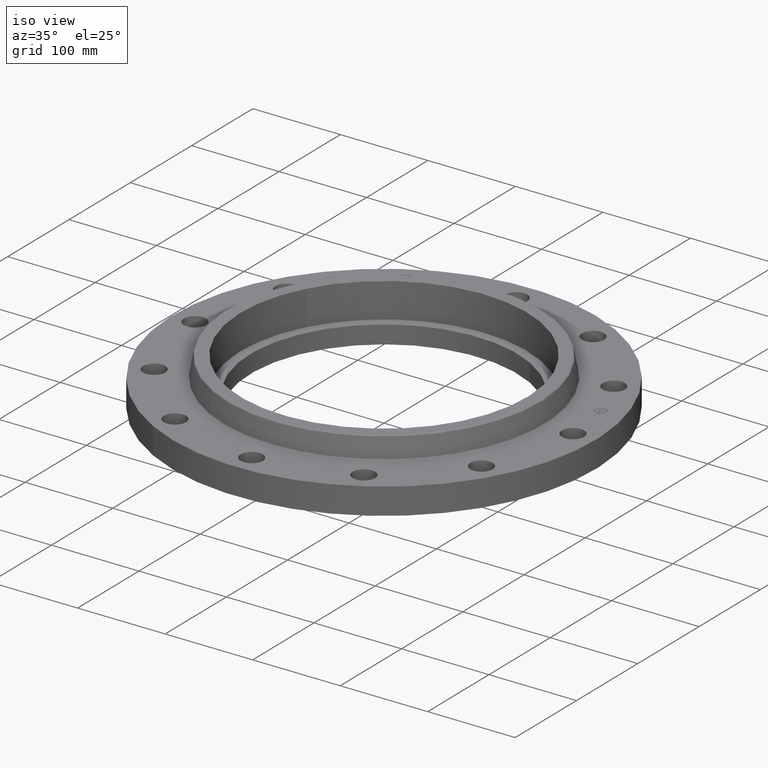
[diagram: clean part render]
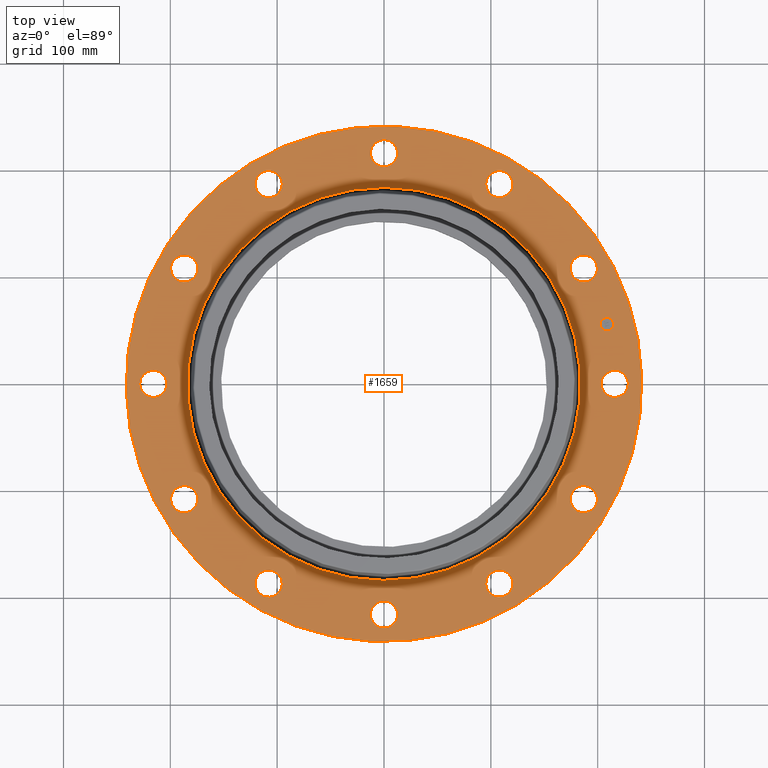
[diagram: tour spotlight — one face highlighted and labeled with its STEP entity id]
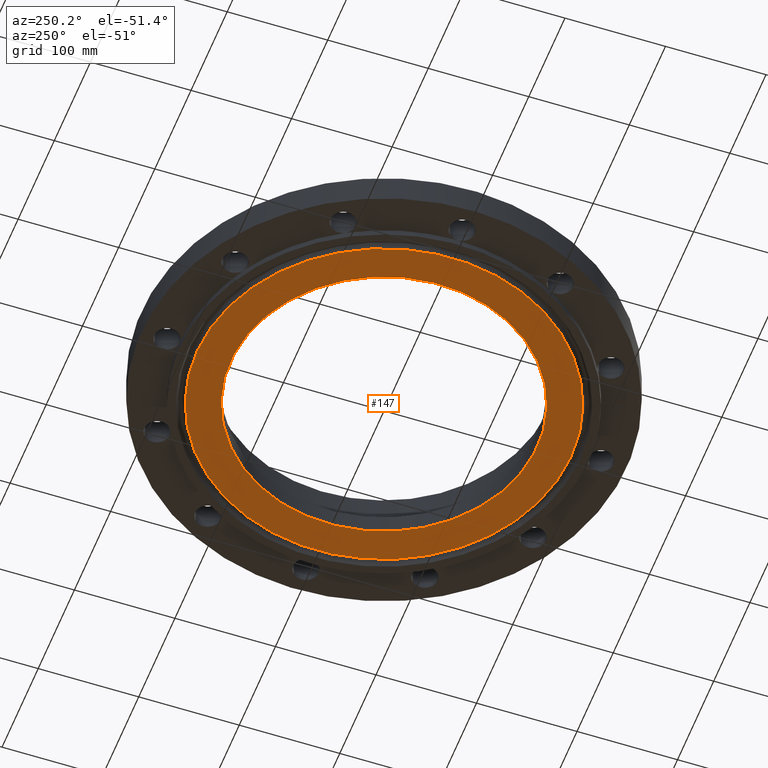
[diagram: tour spotlight — one face highlighted and labeled with its STEP entity id]
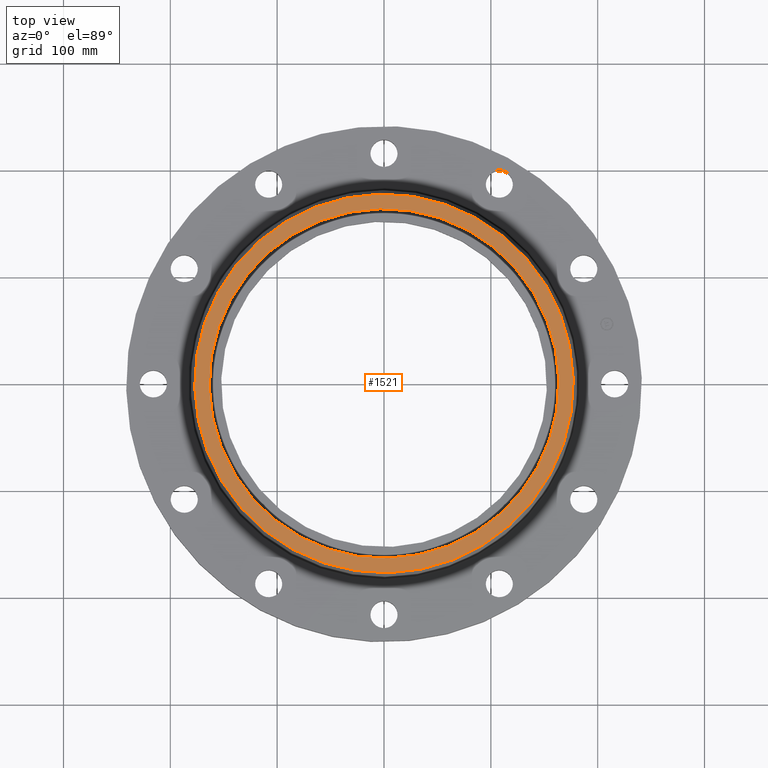
[diagram: tour spotlight — one face highlighted and labeled with its STEP entity id]
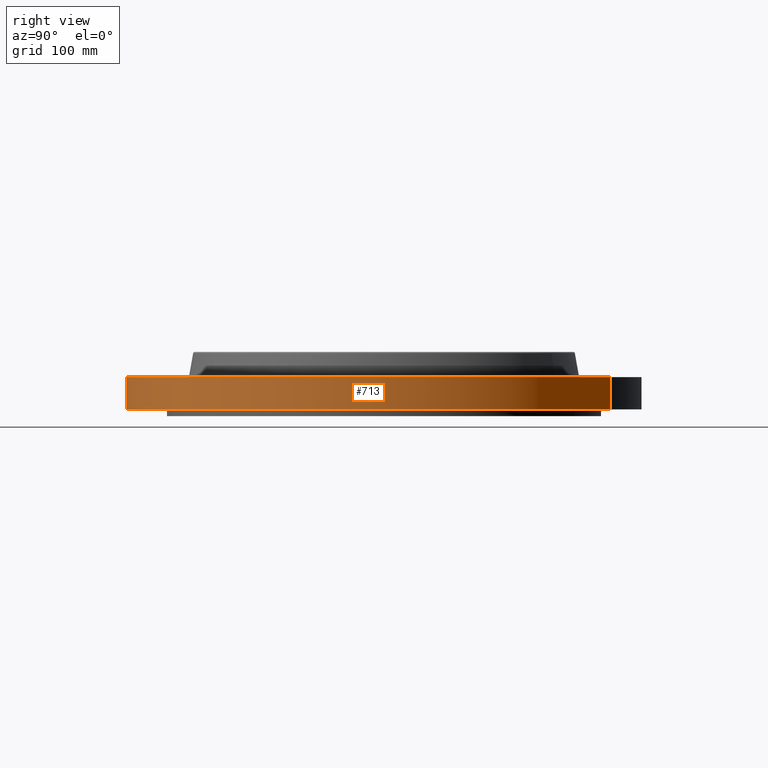
[diagram: tour spotlight — one face highlighted and labeled with its STEP entity id]
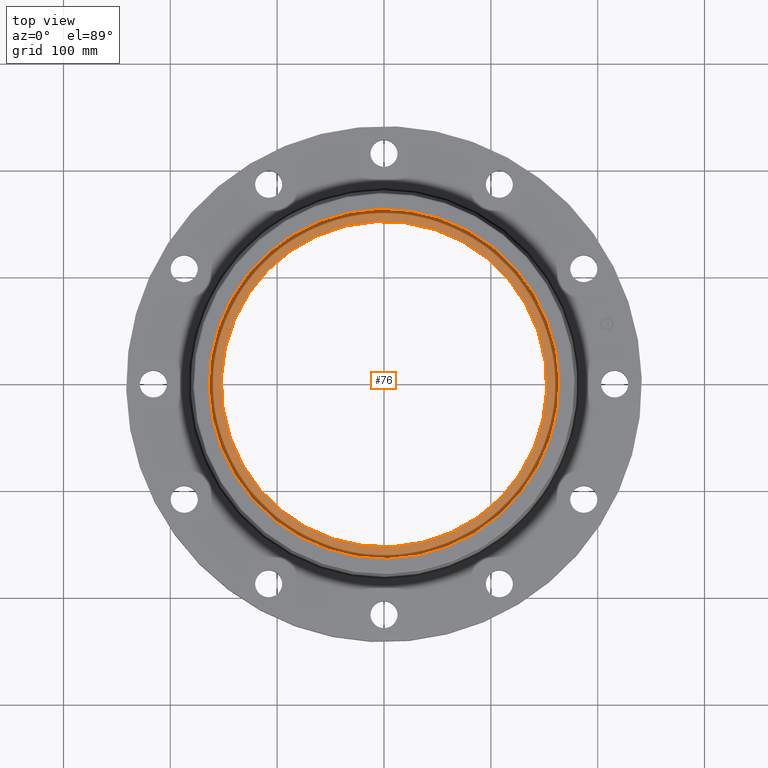
[diagram: tour spotlight — one face highlighted and labeled with its STEP entity id]
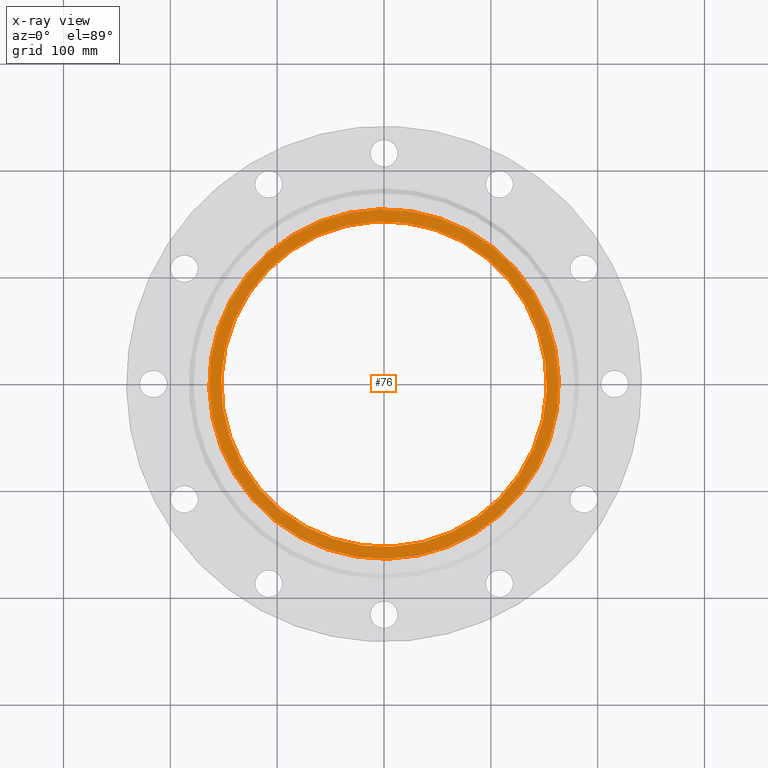
[diagram: x-ray of the same camera — body ghosted, this tour face saturated]
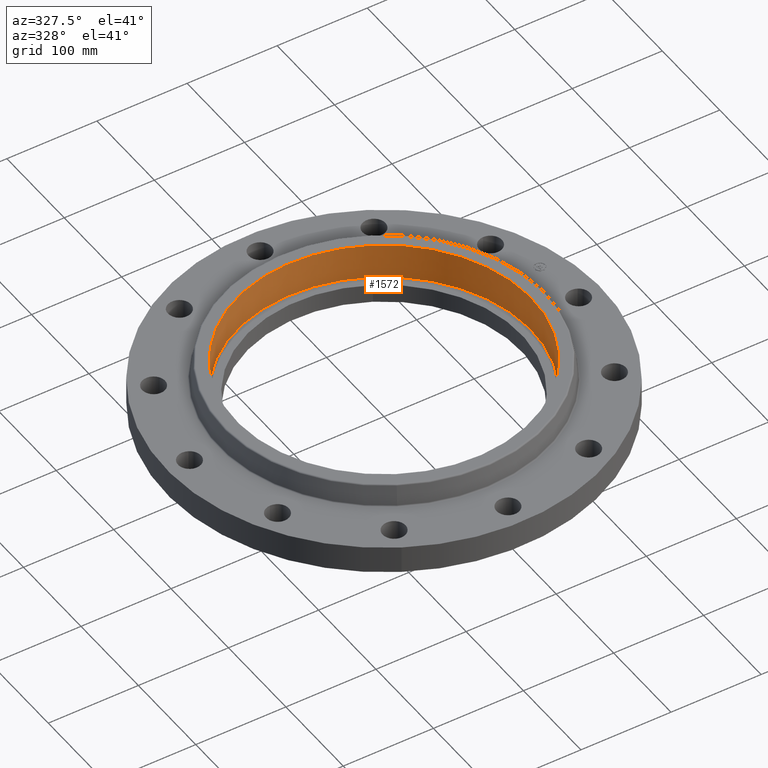
[diagram: tour spotlight — one face highlighted and labeled with its STEP entity id]
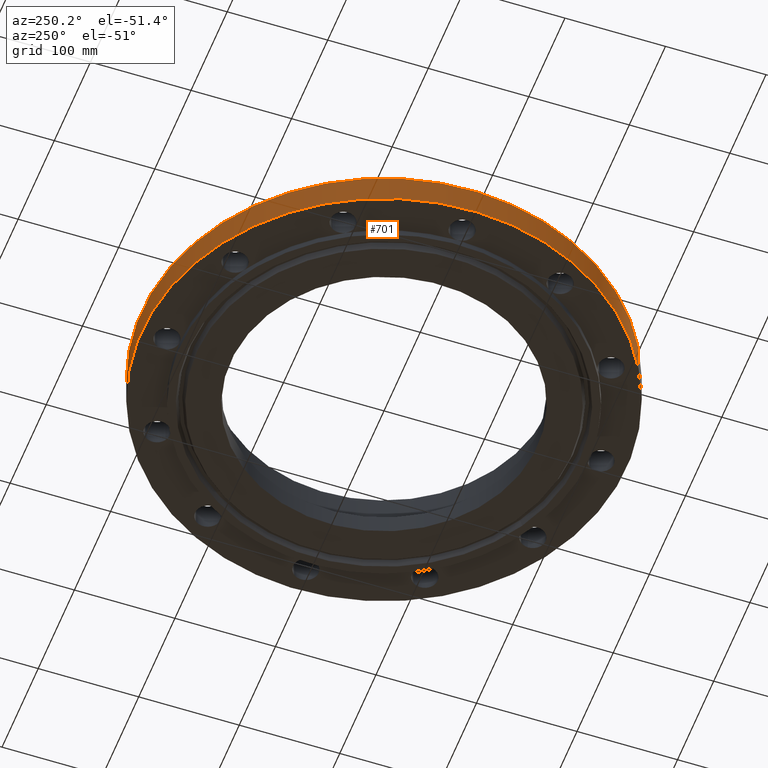
[diagram: tour spotlight — one face highlighted and labeled with its STEP entity id]
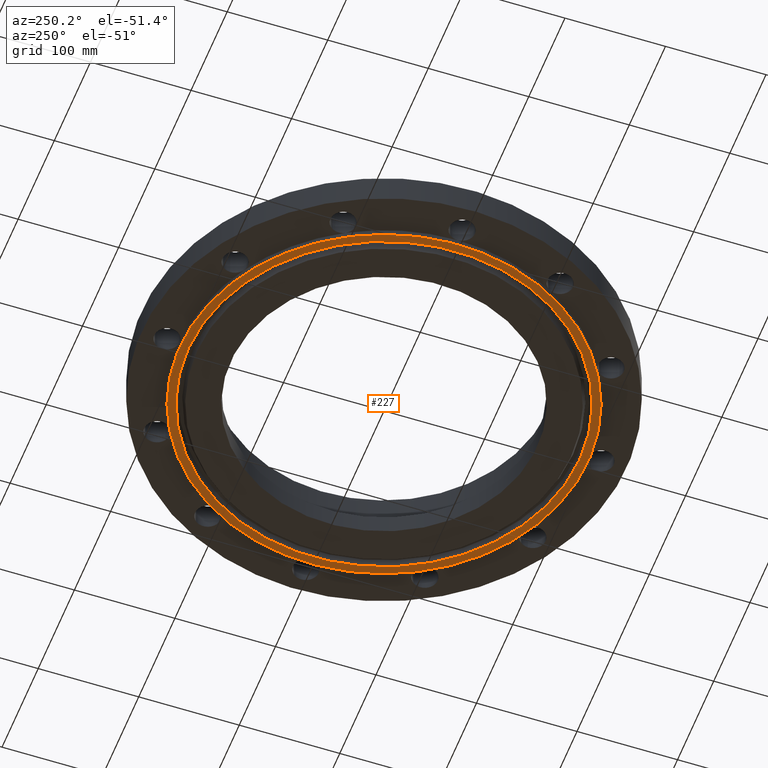
[diagram: tour spotlight — one face highlighted and labeled with its STEP entity id]
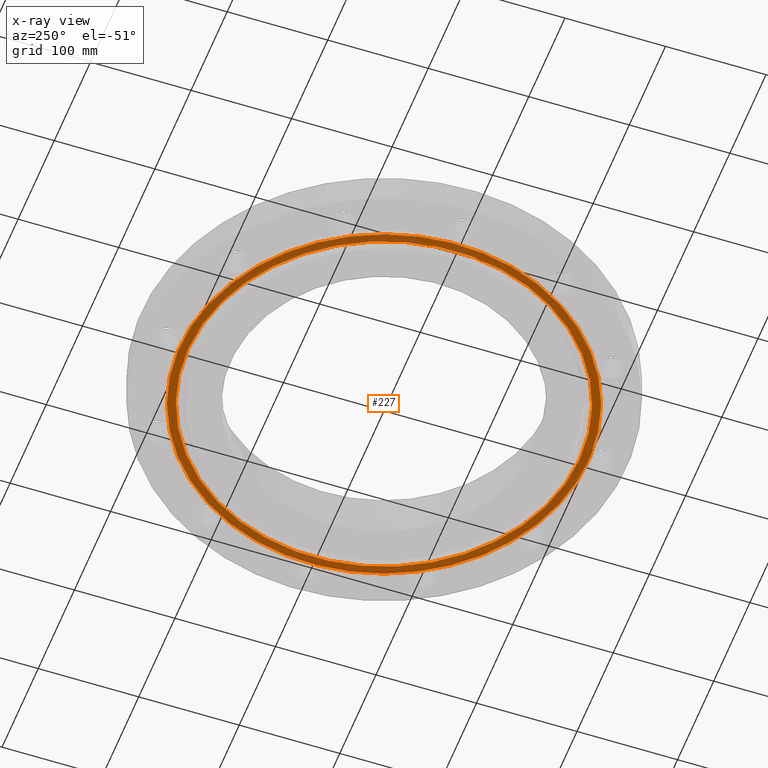
[diagram: x-ray of the same camera — body ghosted, this tour face saturated]
A machine part: a face-by-face anatomy tour. The part has 438 B-rep faces; the first image is the clean iso view, then the 8 largest visible faces are spotlighted one at a time (largest first), each with its STEP entity span.

Face 1 — top view, entity #1659. In plain terms, the highlighted planar face has unit normal (0, 0, -1).
Definition (entity closure, byte-faithful):
#685=AXIS2_PLACEMENT_3D('Circle Axis2P3D',#683,#684,$) ;
#704=AXIS2_PLACEMENT_3D('Circle Axis2P3D',#702,#703,$) ;
#735=AXIS2_PLACEMENT_3D('Circle Axis2P3D',#733,#734,$) ;
#747=AXIS2_PLACEMENT_3D('Circle Axis2P3D',#745,#746,$) ;
#779=AXIS2_PLACEMENT_3D('Circle Axis2P3D',#777,#778,$) ;
#791=AXIS2_PLACEMENT_3D('Circle Axis2P3D',#789,#790,$) ;
#823=AXIS2_PLACEMENT_3D('Circle Axis2P3D',#821,#822,$) ;
#835=AXIS2_PLACEMENT_3D('Circle Axis2P3D',#833,#834,$) ;
#867=AXIS2_PLACEMENT_3D('Circle Axis2P3D',#865,#866,$) ;
#879=AXIS2_PLACEMENT_3D('Circle Axis2P3D',#877,#878,$) ;
#911=AXIS2_PLACEMENT_3D('Circle Axis2P3D',#909,#910,$) ;
#923=AXIS2_PLACEMENT_3D('Circle Axis2P3D',#921,#922,$) ;
#955=AXIS2_PLACEMENT_3D('Circle Axis2P3D',#953,#954,$) ;
#967=AXIS2_PLACEMENT_3D('Circle Axis2P3D',#965,#966,$) ;
#999=AXIS2_PLACEMENT_3D('Circle Axis2P3D',#997,#998,$) ;
#1011=AXIS2_PLACEMENT_3D('Circle Axis2P3D',#1009,#1010,$) ;
#1043=AXIS2_PLACEMENT_3D('Circle Axis2P3D',#1041,#1042,$) ;
#1055=AXIS2_PLACEMENT_3D('Circle Axis2P3D',#1053,#1054,$) ;
#1087=AXIS2_PLACEMENT_3D('Circle Axis2P3D',#1085,#1086,$) ;
#1099=AXIS2_PLACEMENT_3D('Circle Axis2P3D',#1097,#1098,$) ;
#1131=AXIS2_PLACEMENT_3D('Circle Axis2P3D',#1129,#1130,$) ;
#1143=AXIS2_PLACEMENT_3D('Circle Axis2P3D',#1141,#1142,$) ;
#1175=AXIS2_PLACEMENT_3D('Circle Axis2P3D',#1173,#1174,$) ;
#1187=AXIS2_PLACEMENT_3D('Circle Axis2P3D',#1185,#1186,$) ;
#1219=AXIS2_PLACEMENT_3D('Circle Axis2P3D',#1217,#1218,$) ;
#1231=AXIS2_PLACEMENT_3D('Circle Axis2P3D',#1229,#1230,$) ;
#1249=AXIS2_PLACEMENT_3D('Circle Axis2P3D',#1247,#1248,$) ;
#1284=AXIS2_PLACEMENT_3D('Circle Axis2P3D',#1282,#1283,$) ;
#1583=AXIS2_PLACEMENT_3D('Plane Axis2P3D',#1580,#1581,#1582) ;
#1643=AXIS2_PLACEMENT_3D('Circle Axis2P3D',#1641,#1642,$) ;
#1652=AXIS2_PLACEMENT_3D('Circle Axis2P3D',#1650,#1651,$) ;
#680=CARTESIAN_POINT('Vertex',(-4.55454261676,-8.33703433799,1.19)) ;
#683=CARTESIAN_POINT('Axis2P3D Location',(0.,0.,1.19)) ;
#687=CARTESIAN_POINT('Vertex',(4.55454261676,8.33703433799,1.19)) ;
#702=CARTESIAN_POINT('Axis2P3D Location',(0.,0.,1.19)) ;
#723=CARTESIAN_POINT('Vertex',(8.73971276934,0.438791280947,1.19)) ;
#730=CARTESIAN_POINT('Vertex',(8.26028723073,-0.438791280947,1.19)) ;
#733=CARTESIAN_POINT('Axis2P3D Location',(8.50000000003,-5.98490048565E-016,1.19)) ;
#745=CARTESIAN_POINT('Axis2P3D Location',(8.50000000003,-5.98490048565E-016,1.19)) ;
#767=CARTESIAN_POINT('Vertex',(7.7882089205,-3.98985198841,1.19)) ;
#774=CARTESIAN_POINT('Vertex',(6.9342229439,-4.51014801162,1.19)) ;
#777=CARTESIAN_POINT('Axis2P3D Location',(7.3612159322,-4.25000000002,1.19)) ;
#789=CARTESIAN_POINT('Axis2P3D Location',(7.3612159322,-4.25000000002,1.19)) ;
#811=CARTESIAN_POINT('Vertex',(4.74986078093,-7.34941763955,1.19)) ;
#818=CARTESIAN_POINT('Vertex',(3.75013921911,-7.37301422484,1.19)) ;
#821=CARTESIAN_POINT('Axis2P3D Location',(4.25000000002,-7.3612159322,1.19)) ;
#833=CARTESIAN_POINT('Axis2P3D Location',(4.25000000002,-7.3612159322,1.19)) ;
#855=CARTESIAN_POINT('Vertex',(0.438791280947,-8.73971276934,1.19)) ;
#862=CARTESIAN_POINT('Vertex',(-0.438791280947,-8.26028723073,1.19)) ;
#865=CARTESIAN_POINT('Axis2P3D Location',(1.04094977928E-015,-8.50000000003,1.19)) ;
#877=CARTESIAN_POINT('Axis2P3D Location',(1.04094977928E-015,-8.50000000003,1.19)) ;
#899=CARTESIAN_POINT('Vertex',(-3.98985198841,-7.7882089205,1.19)) ;
#906=CARTESIAN_POINT('Vertex',(-4.51014801162,-6.9342229439,1.19)) ;
#909=CARTESIAN_POINT('Axis2P3D Location',(-4.25000000002,-7.3612159322,1.19)) ;
#921=CARTESIAN_POINT('Axis2P3D Location',(-4.25000000002,-7.3612159322,1.19)) ;
#943=CARTESIAN_POINT('Vertex',(-7.34941763955,-4.74986078093,1.19)) ;
#950=CARTESIAN_POINT('Vertex',(-7.37301422484,-3.75013921911,1.19)) ;
#953=CARTESIAN_POINT('Axis2P3D Location',(-7.3612159322,-4.25000000002,1.19)) ;
#965=CARTESIAN_POINT('Axis2P3D Location',(-7.3612159322,-4.25000000002,1.19)) ;
#987=CARTESIAN_POINT('Vertex',(-8.73971276934,-0.438791280947,1.19)) ;
#994=CARTESIAN_POINT('Vertex',(-8.26028723073,0.438791280947,1.19)) ;
#997=CARTESIAN_POINT('Axis2P3D Location',(-8.50000000003,-4.42459730714E-016,1.19)) ;
#1009=CARTESIAN_POINT('Axis2P3D Location',(-8.50000000003,-4.42459730714E-016,1.19)) ;
#1031=CARTESIAN_POINT('Vertex',(-7.7882089205,3.98985198841,1.19)) ;
#1038=CARTESIAN_POINT('Vertex',(-6.9342229439,4.51014801162,1.19)) ;
#1041=CARTESIAN_POINT('Axis2P3D Location',(-7.3612159322,4.25000000002,1.19)) ;
#1053=CARTESIAN_POINT('Axis2P3D Location',(-7.3612159322,4.25000000002,1.19)) ;
#1075=CARTESIAN_POINT('Vertex',(-4.74986078093,7.34941763955,1.19)) ;
#1082=CARTESIAN_POINT('Vertex',(-3.75013921911,7.37301422484,1.19)) ;
#1085=CARTESIAN_POINT('Axis2P3D Location',(-4.25000000002,7.3612159322,1.19)) ;
#1097=CARTESIAN_POINT('Axis2P3D Location',(-4.25000000002,7.3612159322,1.19)) ;
#1119=CARTESIAN_POINT('Vertex',(-0.438791280947,8.73971276934,1.19)) ;
#1126=CARTESIAN_POINT('Vertex',(0.438791280947,8.26028723073,1.19)) ;
#1129=CARTESIAN_POINT('Axis2P3D Location',(0.,8.50000000003,1.19)) ;
#1141=CARTESIAN_POINT('Axis2P3D Location',(0.,8.50000000003,1.19)) ;
#1163=CARTESIAN_POINT('Vertex',(3.98985198841,7.7882089205,1.19)) ;
#1170=CARTESIAN_POINT('Vertex',(4.51014801162,6.9342229439,1.19)) ;
#1173=CARTESIAN_POINT('Axis2P3D Location',(4.25000000002,7.3612159322,1.19)) ;
#1185=CARTESIAN_POINT('Axis2P3D Location',(4.25000000002,7.3612159322,1.19)) ;
#1207=CARTESIAN_POINT('Vertex',(7.34941763955,4.74986078093,1.19)) ;
#1214=CARTESIAN_POINT('Vertex',(7.37301422484,3.75013921911,1.19)) ;
#1217=CARTESIAN_POINT('Axis2P3D Location',(7.3612159322,4.25000000002,1.19)) ;
#1229=CARTESIAN_POINT('Axis2P3D Location',(7.3612159322,4.25000000002,1.19)) ;
#1247=CARTESIAN_POINT('Axis2P3D Location',(0.,0.,1.19)) ;
#1251=CARTESIAN_POINT('Vertex',(3.47120677014,6.35400137226,1.19)) ;
#1253=CARTESIAN_POINT('Vertex',(-3.47120677014,-6.35400137226,1.19)) ;
#1282=CARTESIAN_POINT('Axis2P3D Location',(0.,0.,1.19)) ;
#1580=CARTESIAN_POINT('Axis2P3D Location',(0.,9.50000000004,1.19)) ;
#1641=CARTESIAN_POINT('Axis2P3D Location',(8.21036952349,2.19996188338,1.19)) ;
#1645=CARTESIAN_POINT('Vertex',(8.14631180983,2.43902852539,1.19)) ;
#1647=CARTESIAN_POINT('Vertex',(8.27442723715,1.96089524137,1.19)) ;
#1650=CARTESIAN_POINT('Axis2P3D Location',(8.21036952349,2.19996188338,1.19)) ;
#684=DIRECTION('Axis2P3D Direction',(0.,0.,-0.0393700787402)) ;
#703=DIRECTION('Axis2P3D Direction',(0.,0.,-0.0393700787402)) ;
#734=DIRECTION('Axis2P3D Direction',(0.,-0.,-0.0393700787402)) ;
#746=DIRECTION('Axis2P3D Direction',(0.,-0.,-0.0393700787402)) ;
#778=DIRECTION('Axis2P3D Direction',(-0.,0.,-0.0393700787402)) ;
#790=DIRECTION('Axis2P3D Direction',(-0.,0.,-0.0393700787402)) ;
#822=DIRECTION('Axis2P3D Direction',(-0.,0.,-0.0393700787402)) ;
#834=DIRECTION('Axis2P3D Direction',(-0.,0.,-0.0393700787402)) ;
#866=DIRECTION('Axis2P3D Direction',(-0.,0.,-0.0393700787402)) ;
#878=DIRECTION('Axis2P3D Direction',(-0.,0.,-0.0393700787402)) ;
#910=DIRECTION('Axis2P3D Direction',(0.,0.,-0.0393700787402)) ;
#922=DIRECTION('Axis2P3D Direction',(0.,0.,-0.0393700787402)) ;
#954=DIRECTION('Axis2P3D Direction',(0.,0.,-0.0393700787402)) ;
#966=DIRECTION('Axis2P3D Direction',(0.,0.,-0.0393700787402)) ;
#998=DIRECTION('Axis2P3D Direction',(0.,0.,-0.0393700787402)) ;
#1010=DIRECTION('Axis2P3D Direction',(0.,0.,-0.0393700787402)) ;
#1042=DIRECTION('Axis2P3D Direction',(0.,0.,-0.0393700787402)) ;
#1054=DIRECTION('Axis2P3D Direction',(0.,0.,-0.0393700787402)) ;
#1086=DIRECTION('Axis2P3D Direction',(0.,0.,-0.0393700787402)) ;
#1098=DIRECTION('Axis2P3D Direction',(0.,0.,-0.0393700787402)) ;
#1130=DIRECTION('Axis2P3D Direction',(0.,-0.,-0.0393700787402)) ;
#1142=DIRECTION('Axis2P3D Direction',(0.,-0.,-0.0393700787402)) ;
#1174=DIRECTION('Axis2P3D Direction',(0.,-0.,-0.0393700787402)) ;
#1186=DIRECTION('Axis2P3D Direction',(0.,-0.,-0.0393700787402)) ;
#1218=DIRECTION('Axis2P3D Direction',(0.,-0.,-0.0393700787402)) ;
#1230=DIRECTION('Axis2P3D Direction',(0.,-0.,-0.0393700787402)) ;
#1248=DIRECTION('Axis2P3D Direction',(0.,0.,-0.0393700787402)) ;
#1283=DIRECTION('Axis2P3D Direction',(0.,0.,-0.0393700787402)) ;
#1581=DIRECTION('Axis2P3D Direction',(0.,0.,-0.0393700787402)) ;
#1582=DIRECTION('Axis2P3D XDirection',(0.0393700787402,0.,0.)) ;
#1642=DIRECTION('Axis2P3D Direction',(0.,0.,-0.0393700787402)) ;
#1651=DIRECTION('Axis2P3D Direction',(0.,0.,-0.0393700787402)) ;
#1586=ORIENTED_EDGE('',*,*,#706,.F.) ;
#1587=ORIENTED_EDGE('',*,*,#689,.F.) ;
#1590=ORIENTED_EDGE('',*,*,#1133,.T.) ;
#1591=ORIENTED_EDGE('',*,*,#1145,.T.) ;
#1594=ORIENTED_EDGE('',*,*,#1286,.T.) ;
#1595=ORIENTED_EDGE('',*,*,#1255,.T.) ;
#1598=ORIENTED_EDGE('',*,*,#1189,.T.) ;
#1599=ORIENTED_EDGE('',*,*,#1177,.T.) ;
#1602=ORIENTED_EDGE('',*,*,#1233,.T.) ;
#1603=ORIENTED_EDGE('',*,*,#1221,.T.) ;
#1606=ORIENTED_EDGE('',*,*,#749,.T.) ;
#1607=ORIENTED_EDGE('',*,*,#737,.T.) ;
#1610=ORIENTED_EDGE('',*,*,#793,.T.) ;
#1611=ORIENTED_EDGE('',*,*,#781,.T.) ;
#1614=ORIENTED_EDGE('',*,*,#837,.T.) ;
#1615=ORIENTED_EDGE('',*,*,#825,.T.) ;
#1618=ORIENTED_EDGE('',*,*,#881,.T.) ;
#1619=ORIENTED_EDGE('',*,*,#869,.T.) ;
#1622=ORIENTED_EDGE('',*,*,#925,.T.) ;
#1623=ORIENTED_EDGE('',*,*,#913,.T.) ;
#1626=ORIENTED_EDGE('',*,*,#969,.T.) ;
#1627=ORIENTED_EDGE('',*,*,#957,.T.) ;
#1630=ORIENTED_EDGE('',*,*,#1013,.T.) ;
#1631=ORIENTED_EDGE('',*,*,#1001,.T.) ;
#1634=ORIENTED_EDGE('',*,*,#1057,.T.) ;
#1635=ORIENTED_EDGE('',*,*,#1045,.T.) ;
#1638=ORIENTED_EDGE('',*,*,#1101,.T.) ;
#1639=ORIENTED_EDGE('',*,*,#1089,.T.) ;
#1656=ORIENTED_EDGE('',*,*,#1649,.T.) ;
#1657=ORIENTED_EDGE('',*,*,#1654,.T.) ;
#1592=FACE_BOUND('',#1589,.T.) ;
#1596=FACE_BOUND('',#1593,.T.) ;
#1600=FACE_BOUND('',#1597,.T.) ;
#1604=FACE_BOUND('',#1601,.T.) ;
#1608=FACE_BOUND('',#1605,.T.) ;
#1612=FACE_BOUND('',#1609,.T.) ;
#1616=FACE_BOUND('',#1613,.T.) ;
#1620=FACE_BOUND('',#1617,.T.) ;
#1624=FACE_BOUND('',#1621,.T.) ;
#1628=FACE_BOUND('',#1625,.T.) ;
#1632=FACE_BOUND('',#1629,.T.) ;
#1636=FACE_BOUND('',#1633,.T.) ;
#1640=FACE_BOUND('',#1637,.T.) ;
#1658=FACE_BOUND('',#1655,.T.) ;
#1659=ADVANCED_FACE('PartBody',(#1588,#1592,#1596,#1600,#1604,#1608,#1612,#1616,#1620,#1624,#1628,#1632,#1636,#1640,#1658),#1584,.F.) ;
#686=CIRCLE('generated circle',#685,9.50000000004) ;
#705=CIRCLE('generated circle',#704,9.50000000004) ;
#736=CIRCLE('generated circle',#735,0.500000000002) ;
#748=CIRCLE('generated circle',#747,0.500000000002) ;
#780=CIRCLE('generated circle',#779,0.500000000002) ;
#792=CIRCLE('generated circle',#791,0.500000000002) ;
#824=CIRCLE('generated circle',#823,0.500000000002) ;
#836=CIRCLE('generated circle',#835,0.500000000002) ;
#868=CIRCLE('generated circle',#867,0.500000000002) ;
#880=CIRCLE('generated circle',#879,0.500000000002) ;
#912=CIRCLE('generated circle',#911,0.500000000002) ;
#924=CIRCLE('generated circle',#923,0.500000000002) ;
#956=CIRCLE('generated circle',#955,0.500000000002) ;
#968=CIRCLE('generated circle',#967,0.500000000002) ;
#1000=CIRCLE('generated circle',#999,0.500000000002) ;
#1012=CIRCLE('generated circle',#1011,0.500000000002) ;
#1044=CIRCLE('generated circle',#1043,0.500000000002) ;
#1056=CIRCLE('generated circle',#1055,0.500000000002) ;
#1088=CIRCLE('generated circle',#1087,0.500000000002) ;
#1100=CIRCLE('generated circle',#1099,0.500000000002) ;
#1132=CIRCLE('generated circle',#1131,0.500000000002) ;
#1144=CIRCLE('generated circle',#1143,0.500000000002) ;
#1176=CIRCLE('generated circle',#1175,0.500000000002) ;
#1188=CIRCLE('generated circle',#1187,0.500000000002) ;
#1220=CIRCLE('generated circle',#1219,0.500000000002) ;
#1232=CIRCLE('generated circle',#1231,0.500000000002) ;
#1250=CIRCLE('generated circle',#1249,7.2403459779) ;
#1285=CIRCLE('generated circle',#1284,7.2403459779) ;
#1644=CIRCLE('generated circle',#1643,0.247500000001) ;
#1653=CIRCLE('generated circle',#1652,0.247500000001) ;
#689=EDGE_CURVE('',#681,#688,#686,.T.) ;
#706=EDGE_CURVE('',#688,#681,#705,.T.) ;
#737=EDGE_CURVE('',#724,#731,#736,.T.) ;
#749=EDGE_CURVE('',#731,#724,#748,.T.) ;
#781=EDGE_CURVE('',#768,#775,#780,.T.) ;
#793=EDGE_CURVE('',#775,#768,#792,.T.) ;
#825=EDGE_CURVE('',#812,#819,#824,.T.) ;
#837=EDGE_CURVE('',#819,#812,#836,.T.) ;
#869=EDGE_CURVE('',#856,#863,#868,.T.) ;
#881=EDGE_CURVE('',#863,#856,#880,.T.) ;
#913=EDGE_CURVE('',#900,#907,#912,.T.) ;
#925=EDGE_CURVE('',#907,#900,#924,.T.) ;
#957=EDGE_CURVE('',#944,#951,#956,.T.) ;
#969=EDGE_CURVE('',#951,#944,#968,.T.) ;
#1001=EDGE_CURVE('',#988,#995,#1000,.T.) ;
#1013=EDGE_CURVE('',#995,#988,#1012,.T.) ;
#1045=EDGE_CURVE('',#1032,#1039,#1044,.T.) ;
#1057=EDGE_CURVE('',#1039,#1032,#1056,.T.) ;
#1089=EDGE_CURVE('',#1076,#1083,#1088,.T.) ;
#1101=EDGE_CURVE('',#1083,#1076,#1100,.T.) ;
#1133=EDGE_CURVE('',#1120,#1127,#1132,.T.) ;
#1145=EDGE_CURVE('',#1127,#1120,#1144,.T.) ;
#1177=EDGE_CURVE('',#1164,#1171,#1176,.T.) ;
#1189=EDGE_CURVE('',#1171,#1164,#1188,.T.) ;
#1221=EDGE_CURVE('',#1208,#1215,#1220,.T.) ;
#1233=EDGE_CURVE('',#1215,#1208,#1232,.T.) ;
#1255=EDGE_CURVE('',#1252,#1254,#1250,.T.) ;
#1286=EDGE_CURVE('',#1254,#1252,#1285,.T.) ;
#1649=EDGE_CURVE('',#1646,#1648,#1644,.T.) ;
#1654=EDGE_CURVE('',#1648,#1646,#1653,.T.) ;
#1585=EDGE_LOOP('',(#1586,#1587)) ;
#1589=EDGE_LOOP('',(#1590,#1591)) ;
#1593=EDGE_LOOP('',(#1594,#1595)) ;
#1597=EDGE_LOOP('',(#1598,#1599)) ;
#1601=EDGE_LOOP('',(#1602,#1603)) ;
#1605=EDGE_LOOP('',(#1606,#1607)) ;
#1609=EDGE_LOOP('',(#1610,#1611)) ;
#1613=EDGE_LOOP('',(#1614,#1615)) ;
#1617=EDGE_LOOP('',(#1618,#1619)) ;
#1621=EDGE_LOOP('',(#1622,#1623)) ;
#1625=EDGE_LOOP('',(#1626,#1627)) ;
#1629=EDGE_LOOP('',(#1630,#1631)) ;
#1633=EDGE_LOOP('',(#1634,#1635)) ;
#1637=EDGE_LOOP('',(#1638,#1639)) ;
#1655=EDGE_LOOP('',(#1656,#1657)) ;
#1588=FACE_OUTER_BOUND('',#1585,.T.) ;
#1584=PLANE('',#1583) ;
#681=VERTEX_POINT('',#680) ;
#688=VERTEX_POINT('',#687) ;
#724=VERTEX_POINT('',#723) ;
#731=VERTEX_POINT('',#730) ;
#768=VERTEX_POINT('',#767) ;
#775=VERTEX_POINT('',#774) ;
#812=VERTEX_POINT('',#811) ;
#819=VERTEX_POINT('',#818) ;
#856=VERTEX_POINT('',#855) ;
#863=VERTEX_POINT('',#862) ;
#900=VERTEX_POINT('',#899) ;
#907=VERTEX_POINT('',#906) ;
#944=VERTEX_POINT('',#943) ;
#951=VERTEX_POINT('',#950) ;
#988=VERTEX_POINT('',#987) ;
#995=VERTEX_POINT('',#994) ;
#1032=VERTEX_POINT('',#1031) ;
#1039=VERTEX_POINT('',#1038) ;
#1076=VERTEX_POINT('',#1075) ;
#1083=VERTEX_POINT('',#1082) ;
#1120=VERTEX_POINT('',#1119) ;
#1127=VERTEX_POINT('',#1126) ;
#1164=VERTEX_POINT('',#1163) ;
#1171=VERTEX_POINT('',#1170) ;
#1208=VERTEX_POINT('',#1207) ;
#1215=VERTEX_POINT('',#1214) ;
#1252=VERTEX_POINT('',#1251) ;
#1254=VERTEX_POINT('',#1253) ;
#1646=VERTEX_POINT('',#1645) ;
#1648=VERTEX_POINT('',#1647) ;

Face 2 — auxiliary view, entity #147. In plain terms, the highlighted planar face has unit normal (0, 0, -1).
Definition (entity closure, byte-faithful):
#91=AXIS2_PLACEMENT_3D('Circle Axis2P3D',#89,#90,$) ;
#110=AXIS2_PLACEMENT_3D('Circle Axis2P3D',#108,#109,$) ;
#123=AXIS2_PLACEMENT_3D('Plane Axis2P3D',#120,#121,#122) ;
#127=AXIS2_PLACEMENT_3D('Circle Axis2P3D',#125,#126,$) ;
#136=AXIS2_PLACEMENT_3D('Circle Axis2P3D',#134,#135,$) ;
#86=CARTESIAN_POINT('Vertex',(2.87655323164,5.26549537136,-0.250000000001)) ;
#89=CARTESIAN_POINT('Axis2P3D Location',(0.,0.,-0.250000000001)) ;
#93=CARTESIAN_POINT('Vertex',(-2.87655323164,-5.26549537136,-0.250000000001)) ;
#108=CARTESIAN_POINT('Axis2P3D Location',(0.,0.,-0.250000000001)) ;
#120=CARTESIAN_POINT('Axis2P3D Location',(0.,6.00000000002,-0.250000000001)) ;
#125=CARTESIAN_POINT('Axis2P3D Location',(2.23792987641E-015,-1.1189649382E-015,-0.250000000001)) ;
#129=CARTESIAN_POINT('Vertex',(-3.5132902751,6.43103471138,-0.250000000001)) ;
#131=CARTESIAN_POINT('Vertex',(3.5132902751,-6.43103471138,-0.250000000001)) ;
#134=CARTESIAN_POINT('Axis2P3D Location',(0.,1.1189649382E-015,-0.250000000001)) ;
#90=DIRECTION('Axis2P3D Direction',(0.,0.,-0.0393700787402)) ;
#109=DIRECTION('Axis2P3D Direction',(0.,0.,-0.0393700787402)) ;
#121=DIRECTION('Axis2P3D Direction',(0.,0.,-0.0393700787402)) ;
#122=DIRECTION('Axis2P3D XDirection',(0.0393700787402,0.,0.)) ;
#126=DIRECTION('Axis2P3D Direction',(0.,0.,-0.0393700787402)) ;
#135=DIRECTION('Axis2P3D Direction',(0.,0.,-0.0393700787402)) ;
#140=ORIENTED_EDGE('',*,*,#133,.T.) ;
#141=ORIENTED_EDGE('',*,*,#138,.T.) ;
#144=ORIENTED_EDGE('',*,*,#95,.F.) ;
#145=ORIENTED_EDGE('',*,*,#112,.F.) ;
#146=FACE_BOUND('',#143,.T.) ;
#147=ADVANCED_FACE('PartBody',(#142,#146),#124,.T.) ;
#92=CIRCLE('generated circle',#91,6.00000000002) ;
#111=CIRCLE('generated circle',#110,6.00000000002) ;
#128=CIRCLE('generated circle',#127,7.32812500003) ;
#137=CIRCLE('generated circle',#136,7.32812500003) ;
#95=EDGE_CURVE('',#87,#94,#92,.T.) ;
#112=EDGE_CURVE('',#94,#87,#111,.T.) ;
#133=EDGE_CURVE('',#130,#132,#128,.T.) ;
#138=EDGE_CURVE('',#132,#130,#137,.T.) ;
#139=EDGE_LOOP('',(#140,#141)) ;
#143=EDGE_LOOP('',(#144,#145)) ;
#142=FACE_OUTER_BOUND('',#139,.T.) ;
#124=PLANE('',#123) ;
#87=VERTEX_POINT('',#86) ;
#94=VERTEX_POINT('',#93) ;
#130=VERTEX_POINT('',#129) ;
#132=VERTEX_POINT('',#131) ;

Face 3 — top view, entity #1521. In plain terms, the highlighted planar face has unit normal (0, 0, -1).
Definition (entity closure, byte-faithful):
#1442=AXIS2_PLACEMENT_3D('Circle Axis2P3D',#1440,#1441,$) ;
#1461=AXIS2_PLACEMENT_3D('Circle Axis2P3D',#1459,#1460,$) ;
#1497=AXIS2_PLACEMENT_3D('Plane Axis2P3D',#1494,#1495,#1496) ;
#1505=AXIS2_PLACEMENT_3D('Circle Axis2P3D',#1503,#1504,$) ;
#1514=AXIS2_PLACEMENT_3D('Circle Axis2P3D',#1512,#1513,$) ;
#1437=CARTESIAN_POINT('Vertex',(3.34431431336,6.12172628816,2.12000000001)) ;
#1440=CARTESIAN_POINT('Axis2P3D Location',(0.,0.,2.12000000001)) ;
#1444=CARTESIAN_POINT('Vertex',(-3.34431431336,-6.12172628816,2.12000000001)) ;
#1459=CARTESIAN_POINT('Axis2P3D Location',(0.,0.,2.12000000001)) ;
#1494=CARTESIAN_POINT('Axis2P3D Location',(0.,6.9756699301,2.12000000001)) ;
#1503=CARTESIAN_POINT('Axis2P3D Location',(-5.59482469102E-016,1.1189649382E-015,2.12000000001)) ;
#1507=CARTESIAN_POINT('Vertex',(-5.6516316986,3.08750046862,2.12000000001)) ;
#1509=CARTESIAN_POINT('Vertex',(5.6516316986,-3.08750046862,2.12000000001)) ;
#1512=CARTESIAN_POINT('Axis2P3D Location',(2.79741234551E-016,0.,2.12000000001)) ;
#1441=DIRECTION('Axis2P3D Direction',(0.,0.,-0.0393700787402)) ;
#1460=DIRECTION('Axis2P3D Direction',(0.,0.,-0.0393700787402)) ;
#1495=DIRECTION('Axis2P3D Direction',(0.,0.,-0.0393700787402)) ;
#1496=DIRECTION('Axis2P3D XDirection',(0.0393700787402,0.,0.)) ;
#1504=DIRECTION('Axis2P3D Direction',(0.,0.,-0.0393700787402)) ;
#1513=DIRECTION('Axis2P3D Direction',(0.,0.,-0.0393700787402)) ;
#1500=ORIENTED_EDGE('',*,*,#1446,.F.) ;
#1501=ORIENTED_EDGE('',*,*,#1463,.F.) ;
#1518=ORIENTED_EDGE('',*,*,#1511,.T.) ;
#1519=ORIENTED_EDGE('',*,*,#1516,.T.) ;
#1520=FACE_BOUND('',#1517,.T.) ;
#1521=ADVANCED_FACE('PartBody',(#1502,#1520),#1498,.F.) ;
#1443=CIRCLE('generated circle',#1442,6.9756699301) ;
#1462=CIRCLE('generated circle',#1461,6.9756699301) ;
#1506=CIRCLE('generated circle',#1505,6.44000000003) ;
#1515=CIRCLE('generated circle',#1514,6.44000000003) ;
#1446=EDGE_CURVE('',#1438,#1445,#1443,.T.) ;
#1463=EDGE_CURVE('',#1445,#1438,#1462,.T.) ;
#1511=EDGE_CURVE('',#1508,#1510,#1506,.T.) ;
#1516=EDGE_CURVE('',#1510,#1508,#1515,.T.) ;
#1499=EDGE_LOOP('',(#1500,#1501)) ;
#1517=EDGE_LOOP('',(#1518,#1519)) ;
#1502=FACE_OUTER_BOUND('',#1499,.T.) ;
#1498=PLANE('',#1497) ;
#1438=VERTEX_POINT('',#1437) ;
#1445=VERTEX_POINT('',#1444) ;
#1508=VERTEX_POINT('',#1507) ;
#1510=VERTEX_POINT('',#1509) ;

Face 4 — right view, entity #713. In plain terms, the highlighted cylindrical surface (partial cylindrical patch) has radius 241.3 mm, axis along (0, 0, -1).
Definition (entity closure, byte-faithful):
#383=AXIS2_PLACEMENT_3D('Circle Axis2P3D',#381,#382,$) ;
#674=AXIS2_PLACEMENT_3D('Cylinder Axis2P3D',#671,#672,#673) ;
#704=AXIS2_PLACEMENT_3D('Circle Axis2P3D',#702,#703,$) ;
#376=CARTESIAN_POINT('Vertex',(-4.55454261676,-8.33703433799,1.1189649382E-015)) ;
#378=CARTESIAN_POINT('Vertex',(4.55454261676,8.33703433799,1.1189649382E-015)) ;
#381=CARTESIAN_POINT('Axis2P3D Location',(0.,0.,0.)) ;
#671=CARTESIAN_POINT('Axis2P3D Location',(0.,0.,0.935000000004)) ;
#676=CARTESIAN_POINT('Line Origine',(-4.55454261676,-8.33703433799,0.595000000002)) ;
#680=CARTESIAN_POINT('Vertex',(-4.55454261676,-8.33703433799,1.19)) ;
#687=CARTESIAN_POINT('Vertex',(4.55454261676,8.33703433799,1.19)) ;
#690=CARTESIAN_POINT('Line Origine',(4.55454261676,8.33703433799,0.595000000002)) ;
#702=CARTESIAN_POINT('Axis2P3D Location',(0.,0.,1.19)) ;
#382=DIRECTION('Axis2P3D Direction',(0.,0.,-0.0393700787402)) ;
#672=DIRECTION('Axis2P3D Direction',(0.,0.,-0.0393700787402)) ;
#673=DIRECTION('Axis2P3D XDirection',(0.0188750212049,0.0345504945626,0.)) ;
#677=DIRECTION('Vector Direction',(0.,0.,-0.0393700787402)) ;
#691=DIRECTION('Vector Direction',(0.,0.,-0.0393700787402)) ;
#703=DIRECTION('Axis2P3D Direction',(0.,0.,-0.0393700787402)) ;
#678=VECTOR('Line Direction',#677,0.0393700787402) ;
#692=VECTOR('Line Direction',#691,0.0393700787402) ;
#708=ORIENTED_EDGE('',*,*,#385,.F.) ;
#709=ORIENTED_EDGE('',*,*,#694,.T.) ;
#710=ORIENTED_EDGE('',*,*,#706,.T.) ;
#711=ORIENTED_EDGE('',*,*,#682,.F.) ;
#713=ADVANCED_FACE('PartBody',(#712),#675,.T.) ;
#384=CIRCLE('generated circle',#383,9.50000000004) ;
#705=CIRCLE('generated circle',#704,9.50000000004) ;
#675=CYLINDRICAL_SURFACE('generated cylinder',#674,9.50000000004) ;
#385=EDGE_CURVE('',#379,#377,#384,.T.) ;
#682=EDGE_CURVE('',#377,#681,#679,.F.) ;
#694=EDGE_CURVE('',#379,#688,#693,.F.) ;
#706=EDGE_CURVE('',#688,#681,#705,.T.) ;
#707=EDGE_LOOP('',(#708,#709,#710,#711)) ;
#712=FACE_OUTER_BOUND('',#707,.T.) ;
#679=LINE('Line',#676,#678) ;
#693=LINE('Line',#690,#692) ;
#377=VERTEX_POINT('',#376) ;
#379=VERTEX_POINT('',#378) ;
#681=VERTEX_POINT('',#680) ;
#688=VERTEX_POINT('',#687) ;

Face 5 — top view, entity #76. An x-ray twin of the same camera follows (body ghosted, this face saturated) — the face is partly hidden behind the body. In plain terms, the highlighted planar face has unit normal (0, 0, -1).
Definition (entity closure, byte-faithful):
#38=AXIS2_PLACEMENT_3D('Plane Axis2P3D',#35,#36,#37) ;
#42=AXIS2_PLACEMENT_3D('Circle Axis2P3D',#40,#41,$) ;
#51=AXIS2_PLACEMENT_3D('Circle Axis2P3D',#49,#50,$) ;
#60=AXIS2_PLACEMENT_3D('Circle Axis2P3D',#58,#59,$) ;
#69=AXIS2_PLACEMENT_3D('Circle Axis2P3D',#67,#68,$) ;
#35=CARTESIAN_POINT('Axis2P3D Location',(1.04902962957E-016,-6.99353086378E-017,0.560000000002)) ;
#40=CARTESIAN_POINT('Axis2P3D Location',(1.04902962957E-016,-6.99353086378E-017,0.560000000002)) ;
#44=CARTESIAN_POINT('Vertex',(-5.6516316986,3.08750046862,0.560000000002)) ;
#46=CARTESIAN_POINT('Vertex',(5.6516316986,-3.08750046862,0.560000000002)) ;
#49=CARTESIAN_POINT('Axis2P3D Location',(1.04902962957E-016,-6.99353086378E-017,0.560000000002)) ;
#58=CARTESIAN_POINT('Axis2P3D Location',(-4.54579506146E-016,-2.09805925913E-016,0.560000000002)) ;
#62=CARTESIAN_POINT('Vertex',(-2.87655323164,-5.26549537136,0.560000000002)) ;
#64=CARTESIAN_POINT('Vertex',(2.87655323164,5.26549537136,0.560000000002)) ;
#67=CARTESIAN_POINT('Axis2P3D Location',(2.34283283937E-015,6.99353086378E-017,0.560000000002)) ;
#36=DIRECTION('Axis2P3D Direction',(0.,0.,-0.0393700787402)) ;
#37=DIRECTION('Axis2P3D XDirection',(0.0393700787402,0.,0.)) ;
#41=DIRECTION('Axis2P3D Direction',(0.,0.,-0.0393700787402)) ;
#50=DIRECTION('Axis2P3D Direction',(0.,0.,-0.0393700787402)) ;
#59=DIRECTION('Axis2P3D Direction',(0.,0.,-0.0393700787402)) ;
#68=DIRECTION('Axis2P3D Direction',(0.,0.,-0.0393700787402)) ;
#55=ORIENTED_EDGE('',*,*,#48,.F.) ;
#56=ORIENTED_EDGE('',*,*,#53,.F.) ;
#73=ORIENTED_EDGE('',*,*,#66,.T.) ;
#74=ORIENTED_EDGE('',*,*,#71,.T.) ;
#75=FACE_BOUND('',#72,.T.) ;
#76=ADVANCED_FACE('PartBody',(#57,#75),#39,.F.) ;
#43=CIRCLE('generated circle',#42,6.44000000003) ;
#52=CIRCLE('generated circle',#51,6.44000000003) ;
#61=CIRCLE('generated circle',#60,6.00000000002) ;
#70=CIRCLE('generated circle',#69,6.00000000002) ;
#48=EDGE_CURVE('',#45,#47,#43,.T.) ;
#53=EDGE_CURVE('',#47,#45,#52,.T.) ;
#66=EDGE_CURVE('',#63,#65,#61,.T.) ;
#71=EDGE_CURVE('',#65,#63,#70,.T.) ;
#54=EDGE_LOOP('',(#55,#56)) ;
#72=EDGE_LOOP('',(#73,#74)) ;
#57=FACE_OUTER_BOUND('',#54,.T.) ;
#39=PLANE('',#38) ;
#45=VERTEX_POINT('',#44) ;
#47=VERTEX_POINT('',#46) ;
#63=VERTEX_POINT('',#62) ;
#65=VERTEX_POINT('',#64) ;

Face 6 — auxiliary view, entity #1572. In plain terms, the highlighted cylindrical surface (partial cylindrical patch) has radius 163.576 mm, axis along (0, 0, -1).
Definition (entity closure, byte-faithful):
#42=AXIS2_PLACEMENT_3D('Circle Axis2P3D',#40,#41,$) ;
#1505=AXIS2_PLACEMENT_3D('Circle Axis2P3D',#1503,#1504,$) ;
#1554=AXIS2_PLACEMENT_3D('Cylinder Axis2P3D',#1551,#1552,#1553) ;
#40=CARTESIAN_POINT('Axis2P3D Location',(1.04902962957E-016,-6.99353086378E-017,0.560000000002)) ;
#44=CARTESIAN_POINT('Vertex',(-5.6516316986,3.08750046862,0.560000000002)) ;
#46=CARTESIAN_POINT('Vertex',(5.6516316986,-3.08750046862,0.560000000002)) ;
#1503=CARTESIAN_POINT('Axis2P3D Location',(-5.59482469102E-016,1.1189649382E-015,2.12000000001)) ;
#1507=CARTESIAN_POINT('Vertex',(-5.6516316986,3.08750046862,2.12000000001)) ;
#1509=CARTESIAN_POINT('Vertex',(5.6516316986,-3.08750046862,2.12000000001)) ;
#1551=CARTESIAN_POINT('Axis2P3D Location',(1.04902962957E-016,-6.99353086378E-017,2.11606299213)) ;
#1556=CARTESIAN_POINT('Line Origine',(-5.6516316986,3.08750046862,1.34000000001)) ;
#1561=CARTESIAN_POINT('Line Origine',(5.6516316986,-3.08750046862,1.34000000001)) ;
#41=DIRECTION('Axis2P3D Direction',(0.,0.,-0.0393700787402)) ;
#1504=DIRECTION('Axis2P3D Direction',(0.,0.,-0.0393700787402)) ;
#1552=DIRECTION('Axis2P3D Direction',(0.,0.,-0.0393700787402)) ;
#1553=DIRECTION('Axis2P3D XDirection',(0.0345504945626,-0.0188750212049,0.)) ;
#1557=DIRECTION('Vector Direction',(0.,0.,-0.0393700787402)) ;
#1562=DIRECTION('Vector Direction',(0.,0.,-0.0393700787402)) ;
#1558=VECTOR('Line Direction',#1557,0.0393700787402) ;
#1563=VECTOR('Line Direction',#1562,0.0393700787402) ;
#1567=ORIENTED_EDGE('',*,*,#1511,.F.) ;
#1568=ORIENTED_EDGE('',*,*,#1560,.F.) ;
#1569=ORIENTED_EDGE('',*,*,#48,.T.) ;
#1570=ORIENTED_EDGE('',*,*,#1565,.T.) ;
#1572=ADVANCED_FACE('PartBody',(#1571),#1555,.F.) ;
#43=CIRCLE('generated circle',#42,6.44000000003) ;
#1506=CIRCLE('generated circle',#1505,6.44000000003) ;
#1555=CYLINDRICAL_SURFACE('generated cylinder',#1554,6.44000000003) ;
#48=EDGE_CURVE('',#45,#47,#43,.T.) ;
#1511=EDGE_CURVE('',#1508,#1510,#1506,.T.) ;
#1560=EDGE_CURVE('',#45,#1508,#1559,.F.) ;
#1565=EDGE_CURVE('',#47,#1510,#1564,.F.) ;
#1566=EDGE_LOOP('',(#1567,#1568,#1569,#1570)) ;
#1571=FACE_OUTER_BOUND('',#1566,.T.) ;
#1559=LINE('Line',#1556,#1558) ;
#1564=LINE('Line',#1561,#1563) ;
#45=VERTEX_POINT('',#44) ;
#47=VERTEX_POINT('',#46) ;
#1508=VERTEX_POINT('',#1507) ;
#1510=VERTEX_POINT('',#1509) ;

Face 7 — auxiliary view, entity #701. In plain terms, the highlighted cylindrical surface (partial cylindrical patch) has radius 241.3 mm, axis along (0, 0, -1).
Definition (entity closure, byte-faithful):
#374=AXIS2_PLACEMENT_3D('Circle Axis2P3D',#372,#373,$) ;
#674=AXIS2_PLACEMENT_3D('Cylinder Axis2P3D',#671,#672,#673) ;
#685=AXIS2_PLACEMENT_3D('Circle Axis2P3D',#683,#684,$) ;
#372=CARTESIAN_POINT('Axis2P3D Location',(0.,0.,0.)) ;
#376=CARTESIAN_POINT('Vertex',(-4.55454261676,-8.33703433799,1.1189649382E-015)) ;
#378=CARTESIAN_POINT('Vertex',(4.55454261676,8.33703433799,1.1189649382E-015)) ;
#671=CARTESIAN_POINT('Axis2P3D Location',(0.,0.,0.935000000004)) ;
#676=CARTESIAN_POINT('Line Origine',(-4.55454261676,-8.33703433799,0.595000000002)) ;
#680=CARTESIAN_POINT('Vertex',(-4.55454261676,-8.33703433799,1.19)) ;
#683=CARTESIAN_POINT('Axis2P3D Location',(0.,0.,1.19)) ;
#687=CARTESIAN_POINT('Vertex',(4.55454261676,8.33703433799,1.19)) ;
#690=CARTESIAN_POINT('Line Origine',(4.55454261676,8.33703433799,0.595000000002)) ;
#373=DIRECTION('Axis2P3D Direction',(0.,0.,-0.0393700787402)) ;
#672=DIRECTION('Axis2P3D Direction',(0.,0.,-0.0393700787402)) ;
#673=DIRECTION('Axis2P3D XDirection',(0.0188750212049,0.0345504945626,0.)) ;
#677=DIRECTION('Vector Direction',(0.,0.,-0.0393700787402)) ;
#684=DIRECTION('Axis2P3D Direction',(0.,0.,-0.0393700787402)) ;
#691=DIRECTION('Vector Direction',(0.,0.,-0.0393700787402)) ;
#678=VECTOR('Line Direction',#677,0.0393700787402) ;
#692=VECTOR('Line Direction',#691,0.0393700787402) ;
#696=ORIENTED_EDGE('',*,*,#380,.F.) ;
#697=ORIENTED_EDGE('',*,*,#682,.T.) ;
#698=ORIENTED_EDGE('',*,*,#689,.T.) ;
#699=ORIENTED_EDGE('',*,*,#694,.F.) ;
#701=ADVANCED_FACE('PartBody',(#700),#675,.T.) ;
#375=CIRCLE('generated circle',#374,9.50000000004) ;
#686=CIRCLE('generated circle',#685,9.50000000004) ;
#675=CYLINDRICAL_SURFACE('generated cylinder',#674,9.50000000004) ;
#380=EDGE_CURVE('',#377,#379,#375,.T.) ;
#682=EDGE_CURVE('',#377,#681,#679,.F.) ;
#689=EDGE_CURVE('',#681,#688,#686,.T.) ;
#694=EDGE_CURVE('',#379,#688,#693,.F.) ;
#695=EDGE_LOOP('',(#696,#697,#698,#699)) ;
#700=FACE_OUTER_BOUND('',#695,.T.) ;
#679=LINE('Line',#676,#678) ;
#693=LINE('Line',#690,#692) ;
#377=VERTEX_POINT('',#376) ;
#379=VERTEX_POINT('',#378) ;
#681=VERTEX_POINT('',#680) ;
#688=VERTEX_POINT('',#687) ;

Face 8 — auxiliary view, entity #227. An x-ray twin of the same camera follows (body ghosted, this face saturated) — the face is partly hidden behind the body. In plain terms, the highlighted planar face has unit normal (0, 0, -1).
Definition (entity closure, byte-faithful):
#123=AXIS2_PLACEMENT_3D('Plane Axis2P3D',#120,#121,#122) ;
#193=AXIS2_PLACEMENT_3D('Circle Axis2P3D',#191,#192,$) ;
#202=AXIS2_PLACEMENT_3D('Circle Axis2P3D',#200,#201,$) ;
#211=AXIS2_PLACEMENT_3D('Circle Axis2P3D',#209,#210,$) ;
#220=AXIS2_PLACEMENT_3D('Circle Axis2P3D',#218,#219,$) ;
#120=CARTESIAN_POINT('Axis2P3D Location',(0.,6.00000000002,-0.250000000001)) ;
#191=CARTESIAN_POINT('Axis2P3D Location',(0.,0.,-0.250000000001)) ;
#195=CARTESIAN_POINT('Vertex',(-3.83540430885,-7.02066049515,-0.250000000001)) ;
#197=CARTESIAN_POINT('Vertex',(3.83540430885,7.02066049515,-0.250000000001)) ;
#200=CARTESIAN_POINT('Axis2P3D Location',(0.,0.,-0.250000000001)) ;
#209=CARTESIAN_POINT('Axis2P3D Location',(0.,1.1189649382E-015,-0.250000000001)) ;
#213=CARTESIAN_POINT('Vertex',(3.67809280399,-6.73270371703,-0.250000000001)) ;
#215=CARTESIAN_POINT('Vertex',(-3.67809280399,6.73270371703,-0.250000000001)) ;
#218=CARTESIAN_POINT('Axis2P3D Location',(-2.79741234551E-016,1.1189649382E-015,-0.250000000001)) ;
#121=DIRECTION('Axis2P3D Direction',(0.,0.,-0.0393700787402)) ;
#122=DIRECTION('Axis2P3D XDirection',(0.0393700787402,0.,0.)) ;
#192=DIRECTION('Axis2P3D Direction',(0.,0.,-0.0393700787402)) ;
#201=DIRECTION('Axis2P3D Direction',(0.,0.,-0.0393700787402)) ;
#210=DIRECTION('Axis2P3D Direction',(0.,0.,-0.0393700787402)) ;
#219=DIRECTION('Axis2P3D Direction',(0.,0.,-0.0393700787402)) ;
#206=ORIENTED_EDGE('',*,*,#199,.T.) ;
#207=ORIENTED_EDGE('',*,*,#204,.T.) ;
#224=ORIENTED_EDGE('',*,*,#217,.F.) ;
#225=ORIENTED_EDGE('',*,*,#222,.F.) ;
#226=FACE_BOUND('',#223,.T.) ;
#227=ADVANCED_FACE('PartBody',(#208,#226),#124,.T.) ;
#194=CIRCLE('generated circle',#193,8.00000000003) ;
#203=CIRCLE('generated circle',#202,8.00000000003) ;
#212=CIRCLE('generated circle',#211,7.67187500003) ;
#221=CIRCLE('generated circle',#220,7.67187500003) ;
#199=EDGE_CURVE('',#196,#198,#194,.T.) ;
#204=EDGE_CURVE('',#198,#196,#203,.T.) ;
#217=EDGE_CURVE('',#214,#216,#212,.T.) ;
#222=EDGE_CURVE('',#216,#214,#221,.T.) ;
#205=EDGE_LOOP('',(#206,#207)) ;
#223=EDGE_LOOP('',(#224,#225)) ;
#208=FACE_OUTER_BOUND('',#205,.T.) ;
#124=PLANE('',#123) ;
#196=VERTEX_POINT('',#195) ;
#198=VERTEX_POINT('',#197) ;
#214=VERTEX_POINT('',#213) ;
#216=VERTEX_POINT('',#215) ;